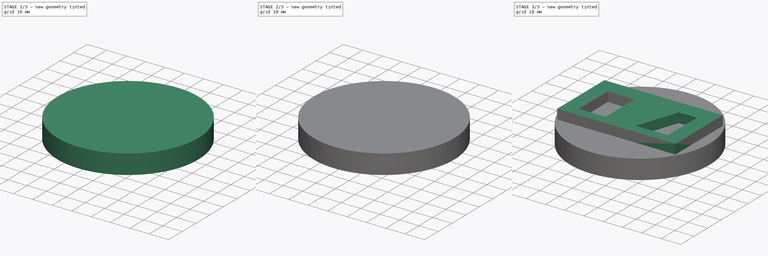
[diagram: build sequence overview — one tinted view per stage of 3, left to right]
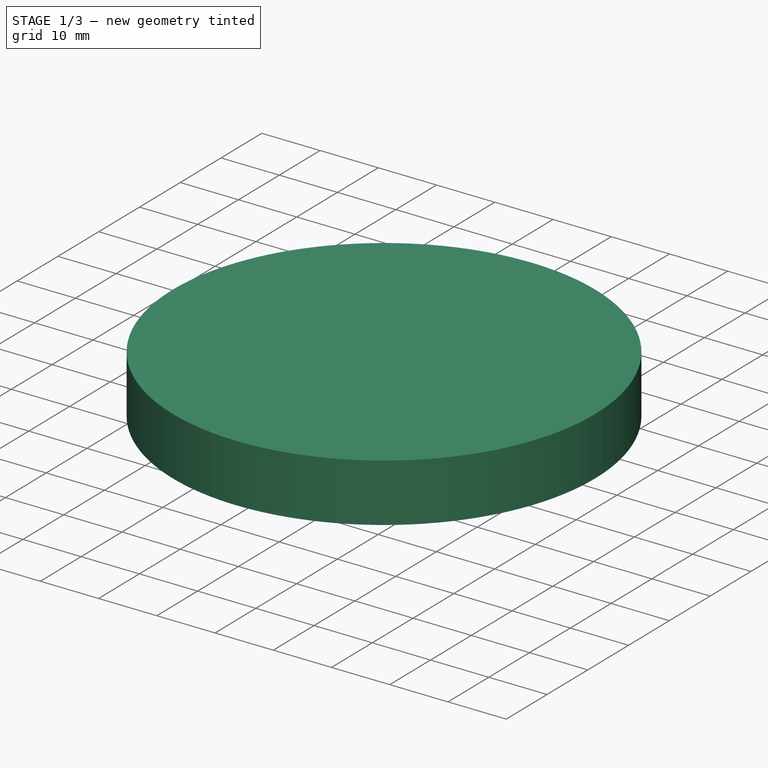
[diagram: stage 1 of 3 — iso view after this stage's code; geometry added in this stage tinted green]
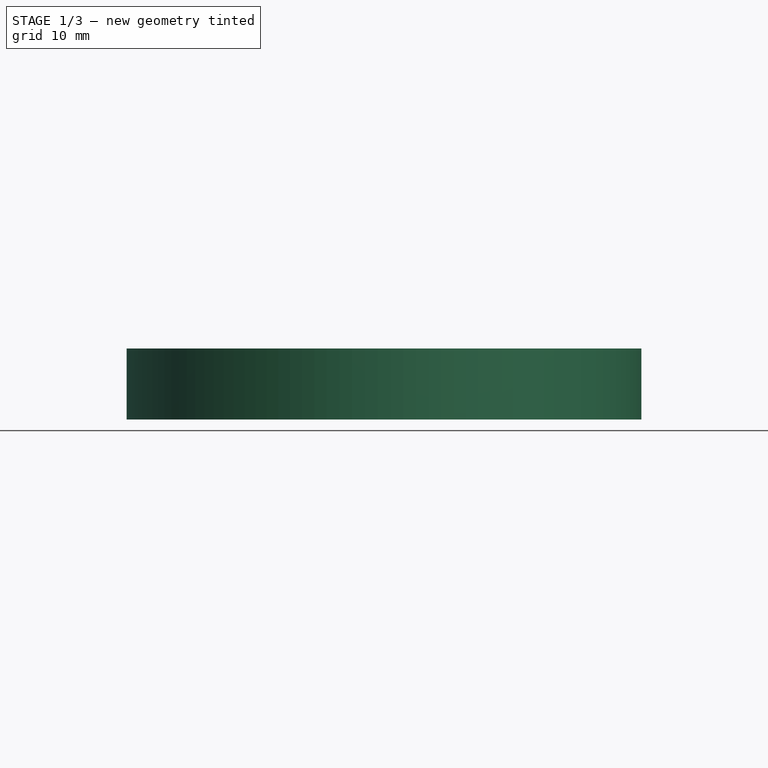
[diagram: stage 1 of 3 — front view after this stage's code; geometry added in this stage tinted green]
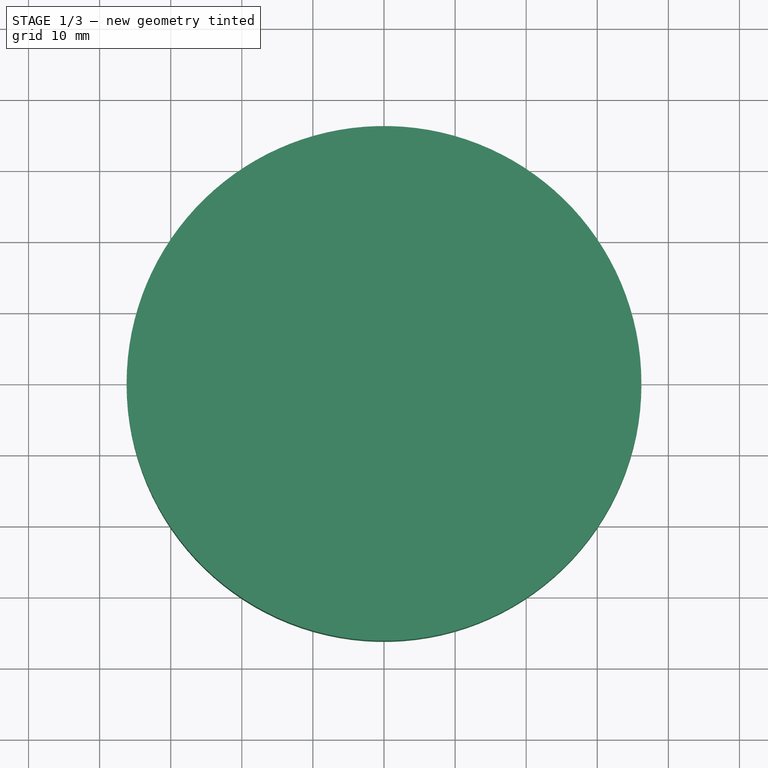
[diagram: stage 1 of 3 — top view after this stage's code; geometry added in this stage tinted green]
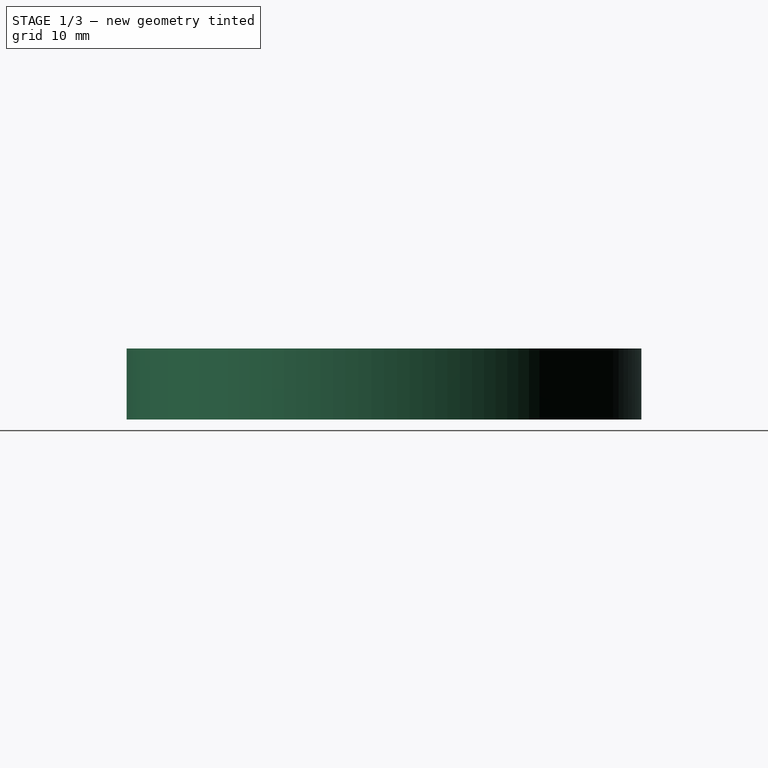
[diagram: stage 1 of 3 — right view after this stage's code; geometry added in this stage tinted green]
FCSTD DOCUMENT  (FreeCAD 0.21RUnknown)
Label: part13
License: All rights reserved
LicenseURL: http://en.wikipedia.org/wiki/All_rights_reserved
objects: Sketcher::SketchObject×5, PartDesign::Pocket×3, PartDesign::Pad×2, PartDesign::Body×2, PartDesign::PolarPattern×1
note: 18 computed .brp shape members not serialized (recipe doc carries the construction recipe); baked Part::Feature solids carry a one-line shape summary decoded from their .brp

FEATURE [PartDesign::Body] Body
  Group = -> [Sketch,Pad,Sketch001,Pocket]
  Origin = -> Origin
  Tip = -> Pocket
FEATURE [Sketcher::SketchObject] Sketch002
  FullyConstrained = false
  MapMode = 5
  Support = -> [XY_Plane001]
  sketch-geometry (1):
    g0: Circle CenterX=0 CenterY=0 CenterZ=0 NormalX=0 NormalY=0 NormalZ=1 AngleXU=0 Radius=36.2088
  constraints (1):
    c: Coincident(g0,g-1)
FEATURE [PartDesign::Pad] Pad001
  Direction = (0,0,1)
  Length = 10
  Length2 = 10
  Profile = -> Sketch002
  ReferenceAxis = -> Sketch002 [N_Axis]
  Type = 0
FEATURE [Sketcher::SketchObject] Sketch003
  FullyConstrained = true
  MapMode = 5
  Placement = pos=(0,0,0) rot=(1,0,0;3.14159rad)
  Support = -> [Pad001]
  sketch-geometry (9):
    g0: Circle CenterX=0 CenterY=0 CenterZ=0 NormalX=0 NormalY=0 NormalZ=1 AngleXU=0 Radius=31.5
    g1: Circle CenterX=0 CenterY=0 CenterZ=0 NormalX=0 NormalY=0 NormalZ=1 AngleXU=0 Radius=28.5
    g2: ArcOfCircle CenterX=0 CenterY=30 CenterZ=0 NormalX=0 NormalY=0 NormalZ=1 AngleXU=0 Radius=2.5 StartAngle=0.610568 EndAngle=5.60592
    g3: ArcOfCircle CenterX=5.72427 CenterY=29.4488 CenterZ=0 NormalX=0 NormalY=0 NormalZ=1 AngleXU=0 Radius=1.5 StartAngle=4.5204 EndAngle=7.662
    g4: GeomPoint X=0 Y=31.5 Z=0
    g5: GeomPoint X=0 Y=28.5 Z=0
    g6: LineSegment StartX=5.72427 StartY=29.4488 StartZ=0 EndX=0 EndY=0 EndZ=0
    g7: ArcOfCircle CenterX=-4.06e-14 CenterY=5.1e-15 CenterZ=0 NormalX=0 NormalY=0 NormalZ=1 AngleXU=0 Radius=31.5 StartAngle=1.37881 EndAngle=1.50572
    g8: ArcOfCircle CenterX=3.92e-14 CenterY=-4.4e-15 CenterZ=0 NormalX=0 NormalY=0 NormalZ=1 AngleXU=0 Radius=28.5 StartAngle=1.37881 EndAngle=1.50238
  constraints (25):
    c: Coincident(g0,g-1)
    c: Coincident(g1,g0)
    c: PointOnObject(g2,g-2)
    c: Tangent(g0,g3)
    c: Tangent(g1,g3)
    c: Diameter(g2) = 5
    c: PointOnObject(g4,g0)
    c: PointOnObject(g5,g1)
    c: PointOnObject(g4,g-2)
    c: Symmetric(g4,g5,g2)
    c: DistanceY(g5,g4) = 3
    c: Coincident(g6,g3)
    c: Coincident(g6,g0)
    c: Angle(g6,g-2) = 0.191986
    c: DistanceY(g0,g2) = 30
    c: PointOnObject(g7,g0)
    c: Equal(g7,g0)
    c: PointOnObject(g7,g0)
    c: PointOnObject(g8,g1)
    c: Equal(g8,g1)
    c: PointOnObject(g8,g1)
    c: Coincident(g2,g8)
    c: Coincident(g2,g7)
    c: Coincident(g3,g7)
    c: Coincident(g3,g8)
FEATURE [PartDesign::Pocket] Pocket001
  BaseFeature = -> Pad001
  Direction = (0,0,1)
  Length = 3
  Length2 = 5
  Profile = -> Sketch003
  ReferenceAxis = -> Sketch003 [N_Axis]
  Type = 0
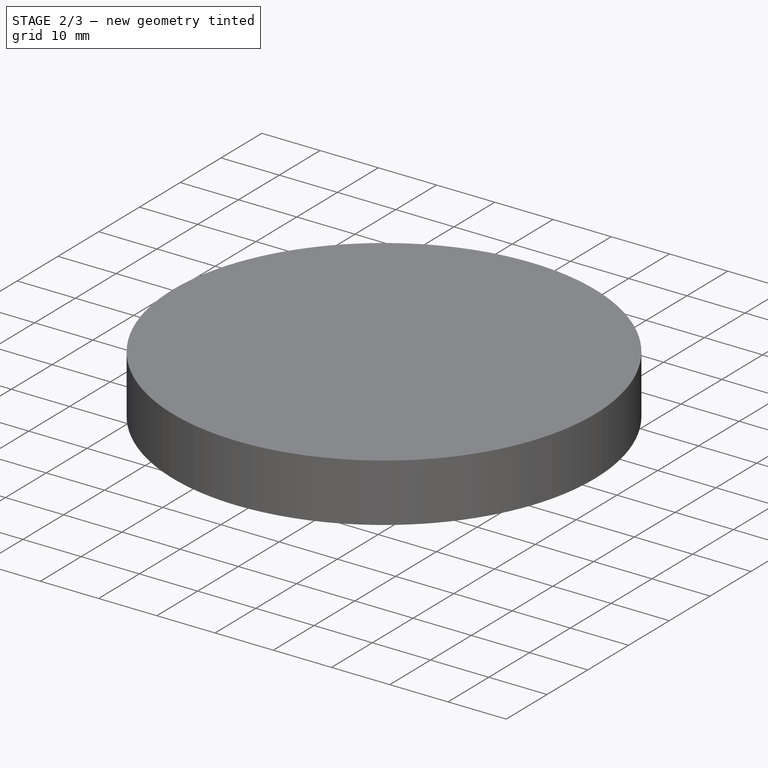
[diagram: stage 2 of 3 — iso view after this stage's code; geometry added in this stage tinted green]
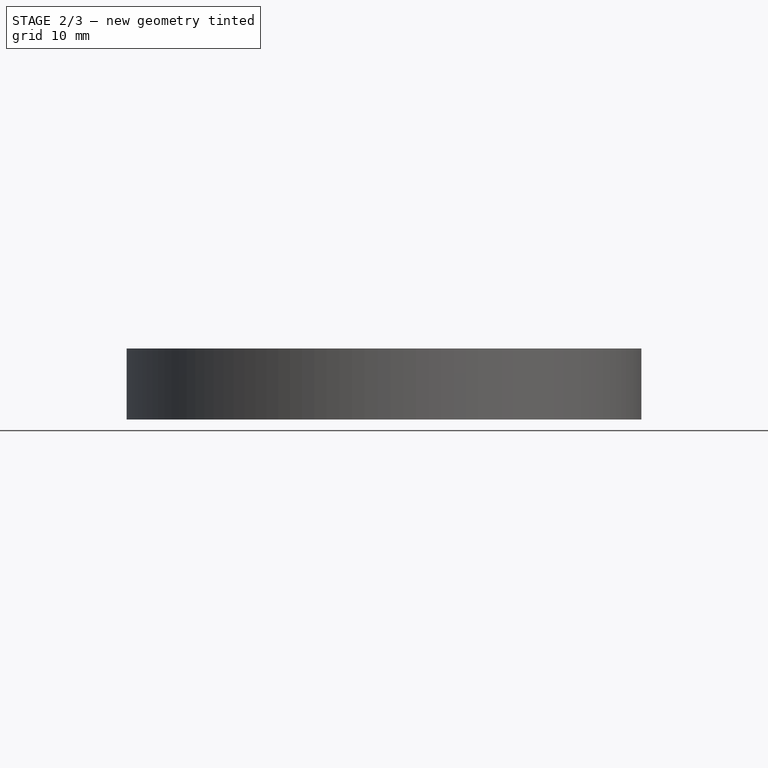
[diagram: stage 2 of 3 — front view after this stage's code; geometry added in this stage tinted green]
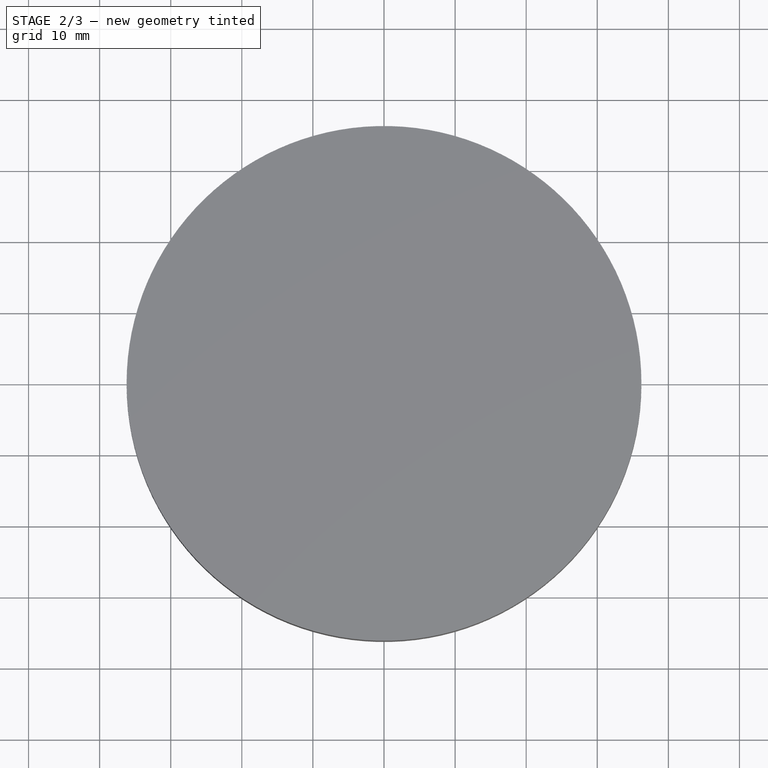
[diagram: stage 2 of 3 — top view after this stage's code; geometry added in this stage tinted green]
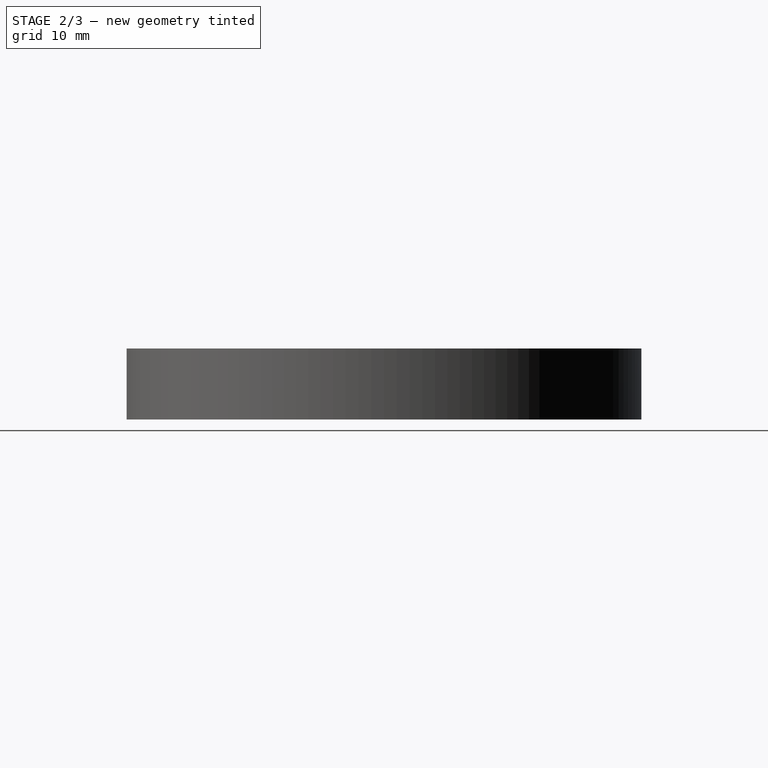
[diagram: stage 2 of 3 — right view after this stage's code; geometry added in this stage tinted green]
FEATURE [Sketcher::SketchObject] Sketch004
  AttachmentOffset = pos=(0,0,-1.5) rot=(0,0,1;0rad)
  ExternalGeometry = -> [Pocket001]
  FullyConstrained = true
  MapMode = 5
  Placement = pos=(0,0,1.5) rot=(1,0,0;3.14159rad)
  Support = -> [Pocket001]
  sketch-geometry (4):
    g0: ArcOfCircle CenterX=0 CenterY=30 CenterZ=0 NormalX=0 NormalY=0 NormalZ=1 AngleXU=0 Radius=2.5 StartAngle=1.4748 EndAngle=4.6164
    g1: ArcOfCircle CenterX=5.72427 CenterY=29.4488 CenterZ=0 NormalX=0 NormalY=0 NormalZ=1 AngleXU=0 Radius=2.5 StartAngle=4.6164 EndAngle=7.75799
    g2: LineSegment StartX=-0.239614 StartY=27.5115 StartZ=0 EndX=5.48466 EndY=26.9603 EndZ=0
    g3: LineSegment StartX=5.96388 StartY=31.9373 StartZ=0 EndX=0.239614 EndY=32.4885 EndZ=0
  constraints (8):
    c: Tangent(g0,g2) = -1.5708
    c: Tangent(g2,g1) = -1.5708
    c: Tangent(g1,g3) = -1.5708
    c: Tangent(g3,g0) = -1.5708
    c: Equal(g0,g1)
    c: Coincident(g0,g-3)
    c: Coincident(g1,g-4)
    c: Equal(g0,g-3)
FEATURE [PartDesign::Pocket] Pocket002
  BaseFeature = -> Pocket001
  Direction = (0,0,1)
  Length = 5
  Length2 = 5
  Offset = 0.5
  Profile = -> Sketch004
  ReferenceAxis = -> Sketch004 [N_Axis]
  Type = 2
FEATURE [PartDesign::PolarPattern] PolarPattern
  Angle = 360
  Axis = -> Sketch003 [N_Axis]
  BaseFeature = -> Pocket002
  Occurrences = 2
  Originals = -> [Pocket001,Pocket002]
FEATURE [PartDesign::Body] Body001
  Group = -> [Sketch002,Pad001,Sketch003,Pocket001,Sketch004,Pocket002,PolarPattern]
  Origin = -> Origin001
  Tip = -> PolarPattern
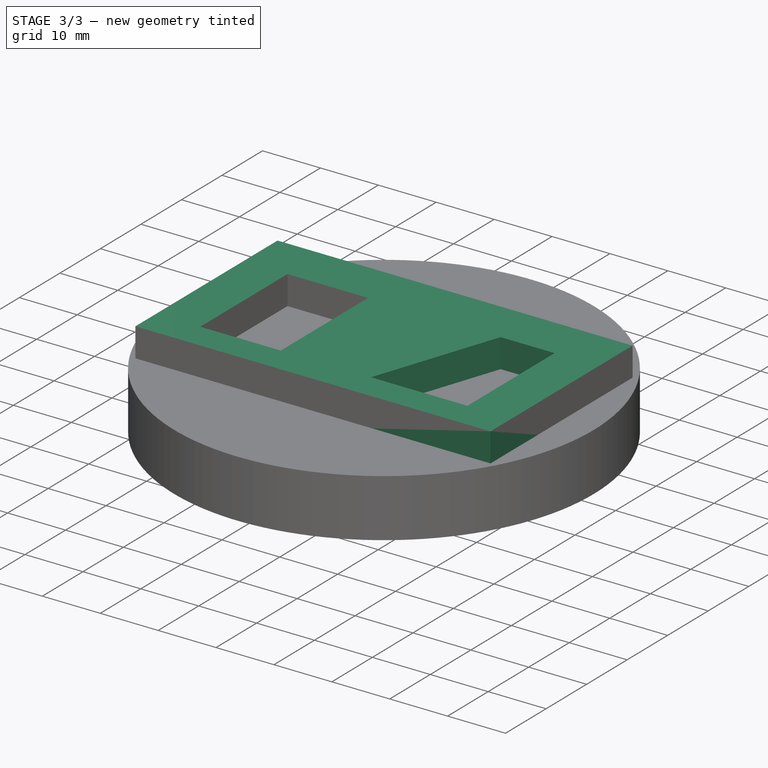
[diagram: stage 3 of 3 — iso view after this stage's code; geometry added in this stage tinted green]
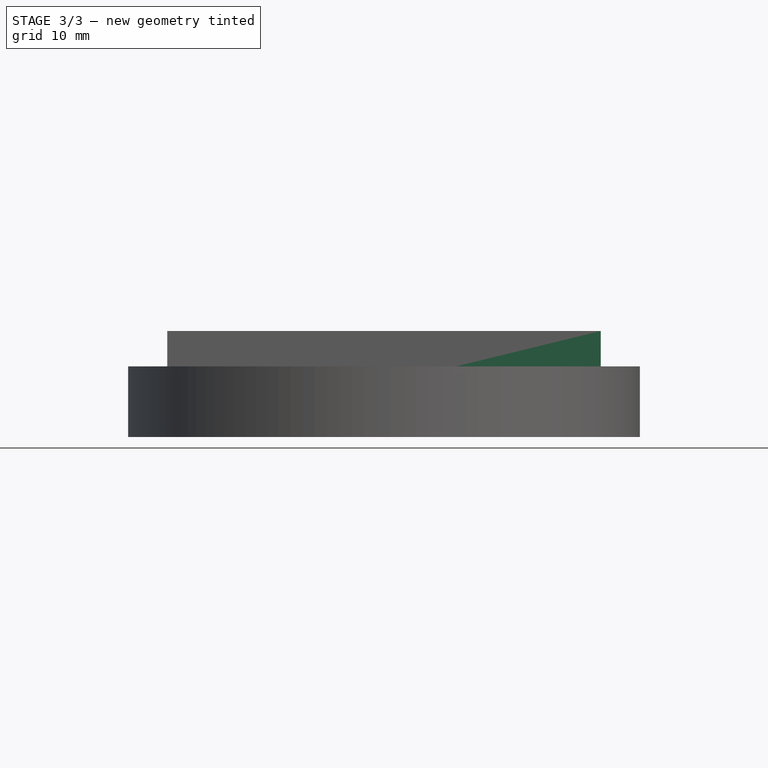
[diagram: stage 3 of 3 — front view after this stage's code; geometry added in this stage tinted green]
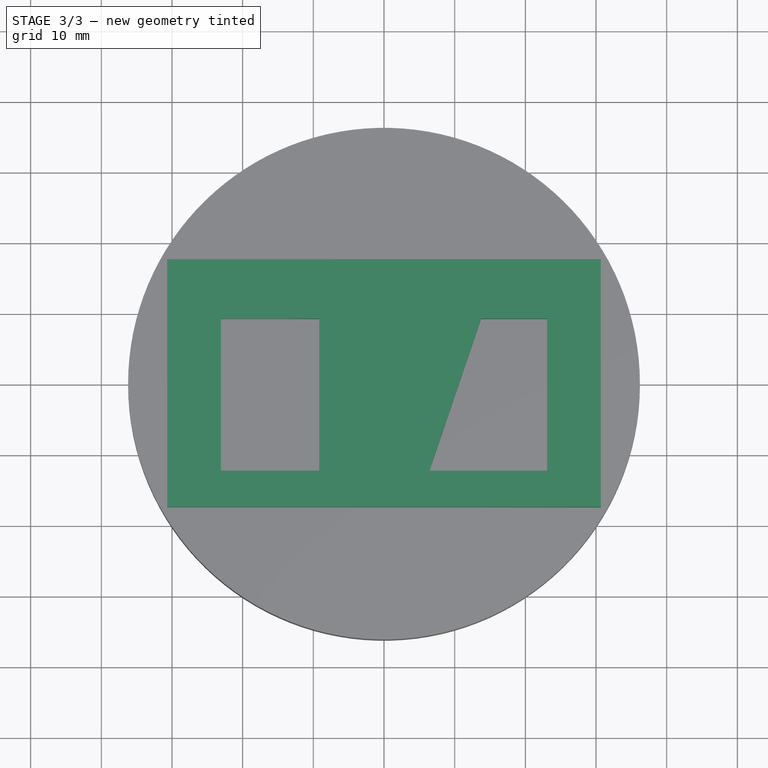
[diagram: stage 3 of 3 — top view after this stage's code; geometry added in this stage tinted green]
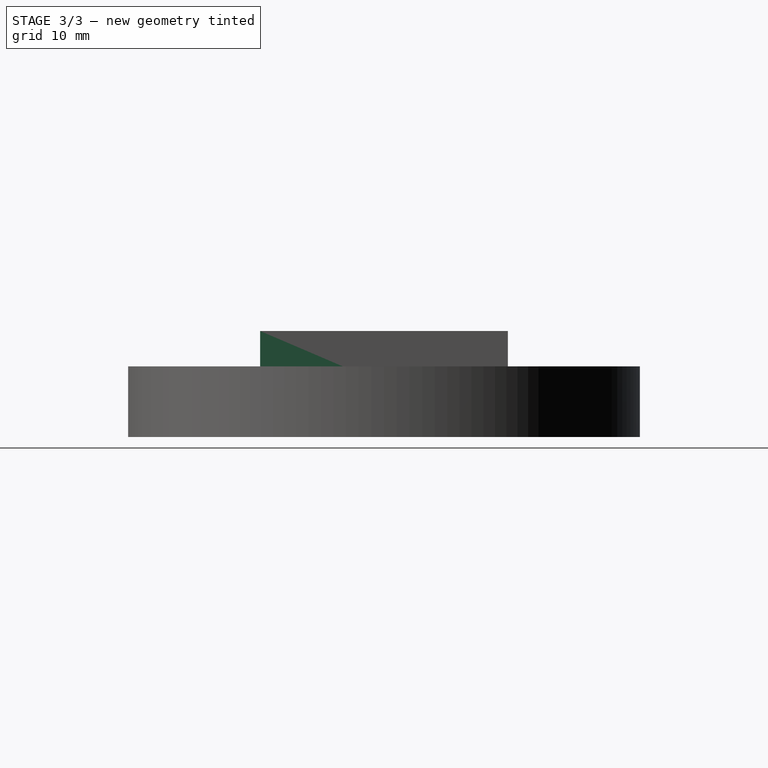
[diagram: stage 3 of 3 — right view after this stage's code; geometry added in this stage tinted green]
FEATURE [Sketcher::SketchObject] Sketch
  FullyConstrained = false
  MapMode = 5
  Support = -> [XY_Plane]
  sketch-geometry (12):
    g0: LineSegment StartX=-30.6669 StartY=17.5265 StartZ=0 EndX=30.6669 EndY=17.5265 EndZ=0
    g1: LineSegment StartX=30.6669 StartY=17.5265 StartZ=0 EndX=30.6669 EndY=-17.5265 EndZ=0
    g2: LineSegment StartX=30.6669 StartY=-17.5265 StartZ=0 EndX=-30.6669 EndY=-17.5265 EndZ=0
    g3: LineSegment StartX=-30.6669 StartY=-17.5265 StartZ=0 EndX=-30.6669 EndY=17.5265 EndZ=0
    g4: LineSegment StartX=-23.0753 StartY=9.1457 StartZ=0 EndX=-9.15297 EndY=9.1457 EndZ=0
    g5: LineSegment StartX=-9.15297 StartY=9.1457 StartZ=0 EndX=-9.15297 EndY=-12.3826 EndZ=0
    g6: LineSegment StartX=-9.15297 StartY=-12.3826 StartZ=0 EndX=-23.0753 EndY=-12.3826 EndZ=0
    g7: LineSegment StartX=-23.0753 StartY=-12.3826 StartZ=0 EndX=-23.0753 EndY=9.1457 EndZ=0
    g8: LineSegment StartX=23.0753 StartY=9.1457 StartZ=0 EndX=13.7402 EndY=9.1457 EndZ=0
    g9: LineSegment StartX=13.7402 StartY=9.1457 StartZ=0 EndX=6.41701 EndY=-12.3826 EndZ=0
    g10: LineSegment StartX=6.41701 StartY=-12.3826 StartZ=0 EndX=23.0753 EndY=-12.3826 EndZ=0
    g11: LineSegment StartX=23.0753 StartY=-12.3826 StartZ=0 EndX=23.0753 EndY=9.1457 EndZ=0
  constraints (25):
    c: Coincident(g0,g1)
    c: Coincident(g1,g2)
    c: Coincident(g2,g3)
    c: Coincident(g3,g0)
    c: Horizontal(g0)
    c: Horizontal(g2)
    c: Vertical(g1)
    c: Vertical(g3)
    c: Symmetric(g0,g1,g-1)
    c: Coincident(g4,g5)
    c: Coincident(g5,g6)
    c: Coincident(g6,g7)
    c: Coincident(g7,g4)
    c: Horizontal(g4)
    c: Horizontal(g6)
    c: Vertical(g5)
    c: Vertical(g7)
    c: Coincident(g8,g9)
    c: Coincident(g9,g10)
    c: Coincident(g10,g11)
    c: Coincident(g11,g8)
    c: Horizontal(g8)
    c: Horizontal(g10)
    c: Symmetric(g8,g4,g-2)
    c: Symmetric(g6,g10,g-2)
FEATURE [PartDesign::Pad] Pad
  Direction = (0,0,1)
  Length = 15
  Length2 = 10
  Profile = -> Sketch
  ReferenceAxis = -> Sketch [N_Axis]
  Type = 0
FEATURE [Sketcher::SketchObject] Sketch001
  AttachmentOffset = pos=(-14,0,0) rot=(0,0,1;0rad)
  ExternalGeometry = -> [Pad]
  FullyConstrained = false
  MapMode = 5
  Placement = pos=(14,-12.3826,0) rot=(0,0.707107,0.707107;3.14159rad)
  Support = -> [Pad]
  sketch-geometry (2):
    g0: Circle CenterX=7.58299 CenterY=0 CenterZ=0 NormalX=0 NormalY=0 NormalZ=1 AngleXU=0 Radius=5.38762
    g1: LineSegment StartX=0 StartY=0 StartZ=0 EndX=15.166 EndY=4.9953e-12 EndZ=0
  constraints (3):
    c: Coincident(g1,g-1)
    c: Symmetric(g1,g1,g0)
    c: Coincident(g0,g-5)
FEATURE [PartDesign::Pocket] Pocket
  BaseFeature = -> Pad
  Direction = (0.322042,0.946725,0)
  Length = 5
  Length2 = 5
  Profile = -> Sketch001
  ReferenceAxis = -> Pad [Edge19]
  Type = 2
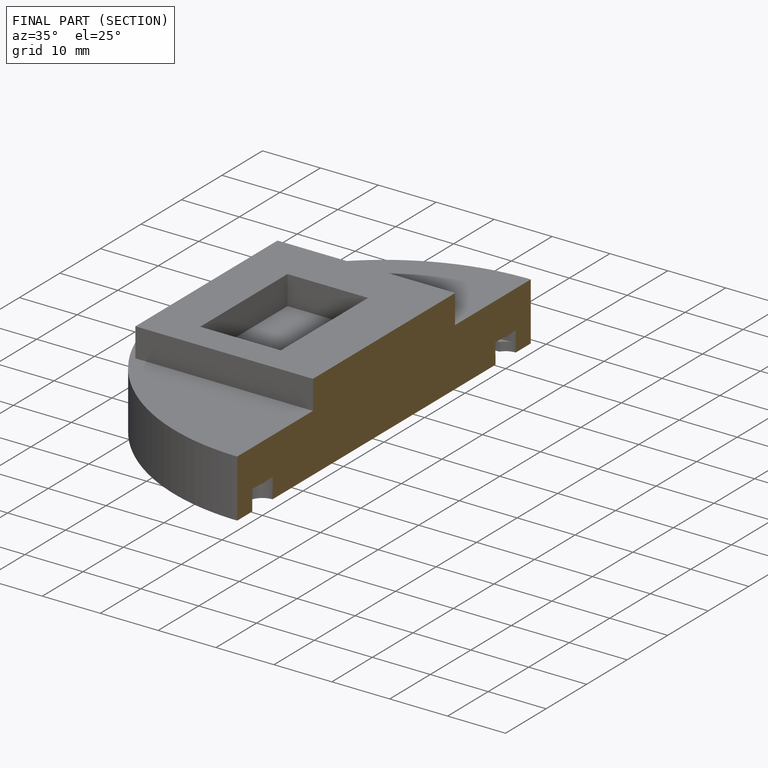
[diagram: finished part — half-section view (interior)]
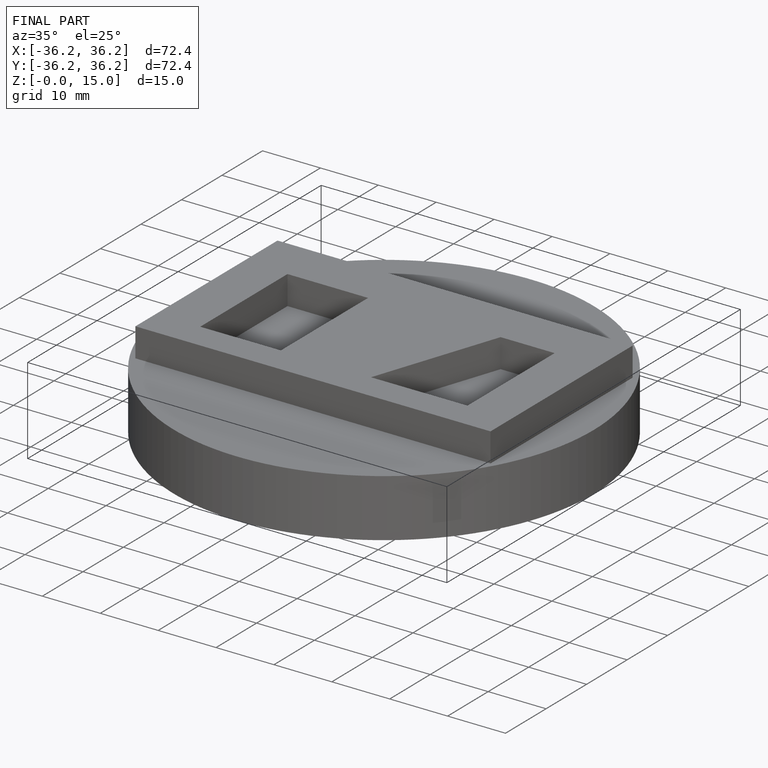
[diagram: finished part — iso view with bounding-box wireframe]
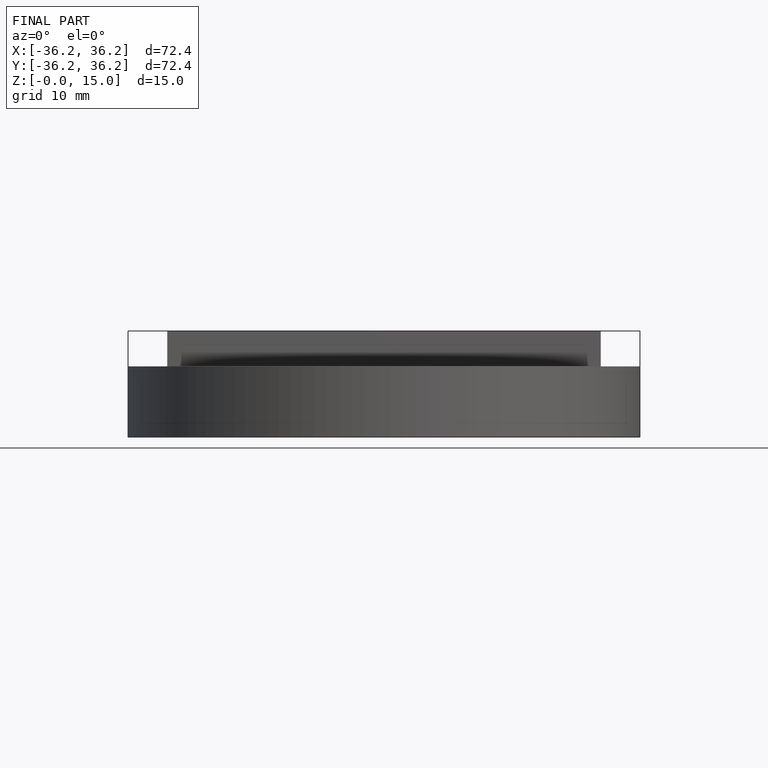
[diagram: finished part — front view with bounding-box wireframe]
